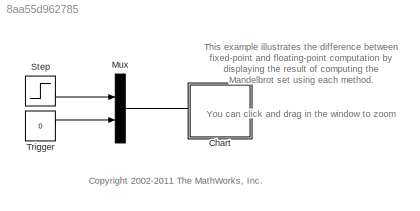
MODEL slx_8aa55d962785
KIND model
CONFIG AbsTol = auto
CONFIG EnableMultiTasking = off
CONFIG FixedStep = 0.0005
CONFIG MaxStep = auto
CONFIG MinStep = auto
CONFIG RelTol = 1e-3
CONFIG SampleTimeConstraint = Unconstrained
CONFIG Solver = FixedStepDiscrete
CONFIG SolverName = FixedStepDiscrete
CONFIG StartTime = 0.0
CONFIG StopTime = inf
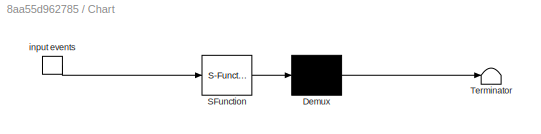
BLOCK [SubSystem] Chart
  ErrorFcn = Stateflow.Translate.translate
  PermitHierarchicalResolution = ExplicitOnly
  Ports = [0, 0, 0, 1]
  RequestExecContextInheritance = off
  SFBlockType = Chart
  TreatAsAtomicUnit = on
  Variant = off
BLOCK [Demux] Chart/ Demux 
  Outputs = 1
  Ports = [1, 1]
BLOCK [S-Function] Chart/ SFunction 
  EnableBusSupport = off
  FunctionName = sf_sfun
  PortCounts = [1 1]
  Ports = [1, 1]
  SFcnIsStateOwnerBlock = off
  SFunctionDeploymentMode = off
  Tag = Stateflow S-Function sf_mandelbrot_fixpt 1
BLOCK [Terminator] Chart/ Terminator 
BLOCK [TriggerPort] Chart/ input events 
  Ports = [0, 1]
  ShowOutputPort = on
  TriggerType = either
  VariantControl = Variant
  ZeroCross = off
BLOCK [Mux] Mux
  DisplayOption = bar
  Inputs = 2
  Ports = [2, 1]
BLOCK [Step] Step
  SampleTime = 0
  Time = 0.1
  ZeroCross = off
BLOCK [Constant] Trigger
  Value = 0
ANNOTATION (root): <copyright redacted>
ANNOTATION (root): This example illustrates the difference between fixed-point and floating-point computation by displaying the result of computing the Mandelbrot set using each method. You can click and drag in the window to zoom in on a portion of the image once a redraw is complete. The simulation runs until stopped.
LINE Mux:1 -> Chart:trigger
LINE Step:1 -> Mux:1
LINE Trigger:1 -> Mux:2
CHART Chart states=3 transitions=24
  STATE_LABEL 'ii = mandel_double(a0,b0)'
  STATE_LABEL '{ ii = 0;\n r2 = 0;\n local_colors = colors; }'
  STATE_LABEL '{\nii++;\n}'
  STATE_LABEL '{\nbn = 2 * an * bn + b0;\nan = r2 + a0;\nr2 = an * an - bn * bn;\n}'
  STATE_LABEL '[ r2 < 4 && ii < local_colors ]'
  STATE_LABEL 'ii = mandel_fix(a0,b0)'
  STATE_LABEL '{ ii = 0;\n r2 = 0;\n local_colors = colors; }'
  STATE_LABEL '{\nii++;\n}'
  STATE_LABEL '{\nbn = 2 * an * bn + b0;\nan = r2 + a0;\nr2 = an * an - bn * bn;\n}'
  STATE_LABEL '[ r2 < 4 && ii < local_colors ]'
  STATE_LABEL 'Wait\nentry:ml.sf_mandel_gui("enter_wait");'
